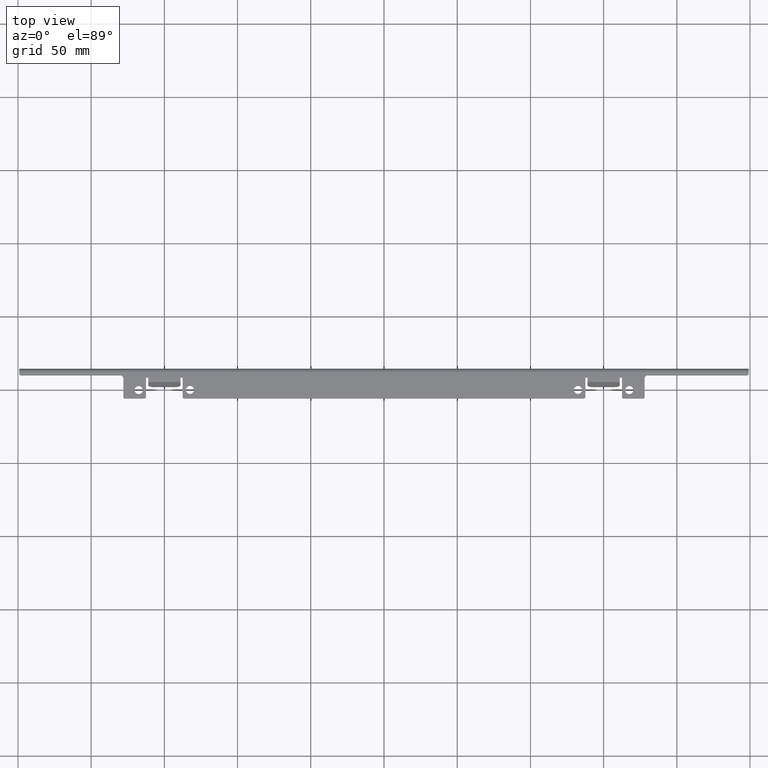
[diagram: clean part render]
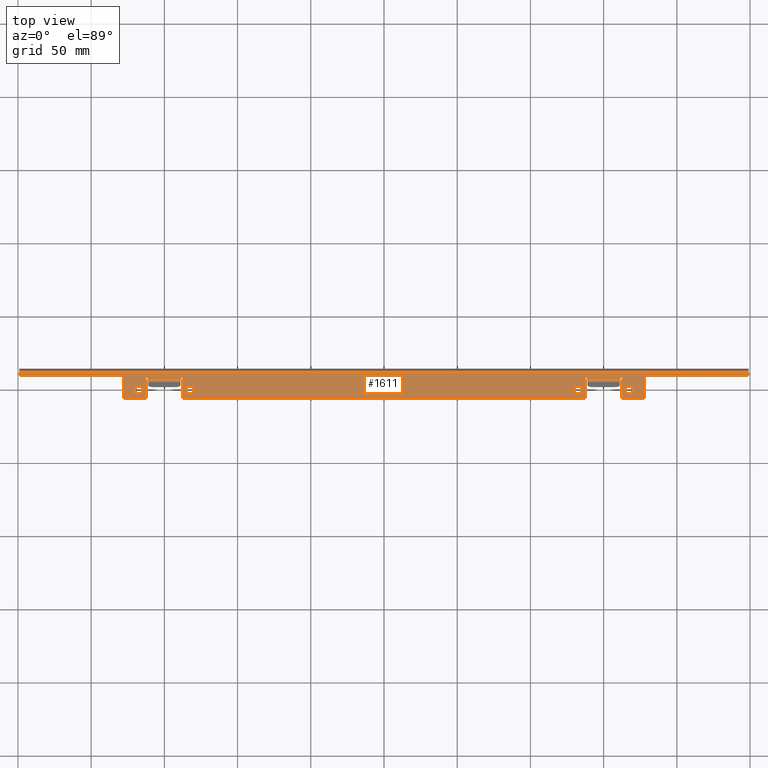
[diagram: same view with one face highlighted and labeled with its STEP entity id]
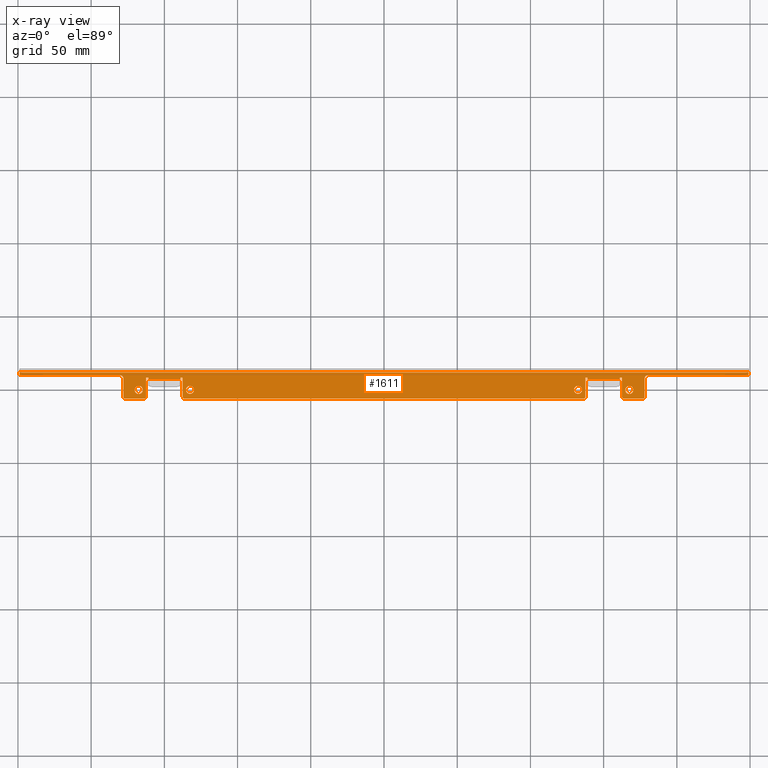
[diagram: x-ray of the same camera — body ghosted, the highlighted face saturated]
A machine part, top view. The second image highlights one B-rep face of the part: STEP entity #1611.
The next image is the same camera in x-ray: the body ghosted, the highlighted face saturated — about 0% of this face is hidden behind the body in this view.
In plain terms, the highlighted planar face has unit normal (0, -0, 1).
Its self-contained STEP definition (entity closure, byte-faithful):
#4 = CIRCLE ( 'NONE', #580, 1.000000000000000900 ) ;
#7 = EDGE_CURVE ( 'NONE', #274, #2395, #1231, .T. ) ;
#10 = AXIS2_PLACEMENT_3D ( 'NONE', #1668, #1493, #933 ) ;
#15 = ORIENTED_EDGE ( 'NONE', *, *, #1948, .T. ) ;
#17 = DIRECTION ( 'NONE',  ( 1.000000000000000000, 0.0000000000000000000, 0.0000000000000000000 ) ) ;
#24 = CARTESIAN_POINT ( 'NONE',  ( -248.0999999999999900, 10.47195934717846700, 0.0000000000000000000 ) ) ;
#27 = VERTEX_POINT ( 'NONE', #1690 ) ;
#31 = CARTESIAN_POINT ( 'NONE',  ( 162.5000000000000000, 7.871959347178525400, 0.0000000000000000000 ) ) ;
#35 = EDGE_CURVE ( 'NONE', #806, #1566, #2409, .T. ) ;
#37 = VERTEX_POINT ( 'NONE', #1828 ) ;
#67 = DIRECTION ( 'NONE',  ( -1.000000000000000000, 0.0000000000000000000, 0.0000000000000000000 ) ) ;
#94 = VERTEX_POINT ( 'NONE', #2396 ) ;
#97 = CIRCLE ( 'NONE', #1510, 2.750000000000002700 ) ;
#115 = DIRECTION ( 'NONE',  ( 0.0000000000000000000, -0.0000000000000000000, 1.000000000000000000 ) ) ;
#116 = DIRECTION ( 'NONE',  ( 1.000000000000000000, 0.0000000000000000000, 0.0000000000000000000 ) ) ;
#117 = DIRECTION ( 'NONE',  ( 0.0000000000000000000, 1.000000000000000000, 0.0000000000000000000 ) ) ;
#142 = AXIS2_PLACEMENT_3D ( 'NONE', #317, #115, #2018 ) ;
#143 = CARTESIAN_POINT ( 'NONE',  ( -139.0000000000000000, 6.871959347178530700, 0.0000000000000000000 ) ) ;
#144 = AXIS2_PLACEMENT_3D ( 'NONE', #1224, #1606, #655 ) ;
#154 = VERTEX_POINT ( 'NONE', #1137 ) ;
#160 = VERTEX_POINT ( 'NONE', #969 ) ;
#172 = AXIS2_PLACEMENT_3D ( 'NONE', #942, #402, #1128 ) ;
#189 = EDGE_CURVE ( 'NONE', #1925, #27, #1356, .T. ) ;
#192 = LINE ( 'NONE', #1889, #1420 ) ;
#195 = DIRECTION ( 'NONE',  ( 0.0000000000000000000, -0.0000000000000000000, 1.000000000000000000 ) ) ;
#196 = CARTESIAN_POINT ( 'NONE',  ( 249.0999999999999900, 10.47195934717846700, 0.0000000000000000000 ) ) ;
#206 = ORIENTED_EDGE ( 'NONE', *, *, #2109, .T. ) ;
#210 = VECTOR ( 'NONE', #2091, 1000.000000000000000 ) ;
#222 = CARTESIAN_POINT ( 'NONE',  ( 0.0000000000000000000, 0.0000000000000000000, 0.0000000000000000000 ) ) ;
#230 = ORIENTED_EDGE ( 'NONE', *, *, #964, .T. ) ;
#238 = VERTEX_POINT ( 'NONE', #797 ) ;
#246 = LINE ( 'NONE', #1681, #2246 ) ;
#248 = CARTESIAN_POINT ( 'NONE',  ( 167.4999999999999700, -0.5280406528214622900, 0.0000000000000000000 ) ) ;
#249 = ORIENTED_EDGE ( 'NONE', *, *, #1106, .T. ) ;
#257 = DIRECTION ( 'NONE',  ( -0.0000000000000000000, 1.000000000000000000, -0.0000000000000000000 ) ) ;
#260 = DIRECTION ( 'NONE',  ( -0.0000000000000000000, -1.000000000000000000, -0.0000000000000000000 ) ) ;
#274 = VERTEX_POINT ( 'NONE', #2260 ) ;
#287 = AXIS2_PLACEMENT_3D ( 'NONE', #1507, #585, #1873 ) ;
#296 = ORIENTED_EDGE ( 'NONE', *, *, #526, .T. ) ;
#299 = LINE ( 'NONE', #2283, #210 ) ;
#300 = DIRECTION ( 'NONE',  ( 0.0000000000000000000, -0.0000000000000000000, 1.000000000000000000 ) ) ;
#317 = CARTESIAN_POINT ( 'NONE',  ( 177.0000000000000000, -5.328040652821452600, 0.0000000000000000000 ) ) ;
#323 = CARTESIAN_POINT ( 'NONE',  ( -160.9999999999999700, 6.871959347178530700, 0.0000000000000000000 ) ) ;
#335 = LINE ( 'NONE', #1009, #1181 ) ;
#338 = CIRCLE ( 'NONE', #144, 2.750000000000002700 ) ;
#350 = EDGE_CURVE ( 'NONE', #1618, #779, #192, .T. ) ;
#356 = VECTOR ( 'NONE', #1967, 1000.000000000000000 ) ;
#366 = CARTESIAN_POINT ( 'NONE',  ( 162.5000000000000000, 7.871959347178525400, 0.0000000000000000000 ) ) ;
#374 = VERTEX_POINT ( 'NONE', #1520 ) ;
#378 = PLANE ( 'NONE',  #676 ) ;
#382 = CARTESIAN_POINT ( 'NONE',  ( -162.5000000000000000, 7.871959347178525400, 0.0000000000000000000 ) ) ;
#386 = EDGE_CURVE ( 'NONE', #2365, #2218, #458, .T. ) ;
#388 = VERTEX_POINT ( 'NONE', #963 ) ;
#389 = VECTOR ( 'NONE', #597, 1000.000000000000000 ) ;
#391 = VECTOR ( 'NONE', #751, 1000.000000000000000 ) ;
#393 = EDGE_CURVE ( 'NONE', #1133, #2183, #631, .T. ) ;
#396 = LINE ( 'NONE', #649, #2334 ) ;
#400 = LINE ( 'NONE', #1087, #766 ) ;
#402 = DIRECTION ( 'NONE',  ( 0.0000000000000000000, 0.0000000000000000000, 1.000000000000000000 ) ) ;
#407 = VECTOR ( 'NONE', #1346, 1000.000000000000000 ) ;
#410 = DIRECTION ( 'NONE',  ( -1.000000000000000000, 0.0000000000000000000, 0.0000000000000000000 ) ) ;
#417 = LINE ( 'NONE', #1659, #2244 ) ;
#443 = CARTESIAN_POINT ( 'NONE',  ( 178.0000000000000000, 9.471959347178456700, 0.0000000000000000000 ) ) ;
#458 = LINE ( 'NONE', #366, #2389 ) ;
#471 = CARTESIAN_POINT ( 'NONE',  ( -170.2499999999999700, -0.5280406528214619500, 0.0000000000000000000 ) ) ;
#485 = DIRECTION ( 'NONE',  ( 1.000000000000000000, -5.595882180570350100E-016, -0.0000000000000000000 ) ) ;
#490 = EDGE_CURVE ( 'NONE', #1173, #37, #335, .T. ) ;
#496 = EDGE_CURVE ( 'NONE', #1226, #1982, #2062, .T. ) ;
#500 = CARTESIAN_POINT ( 'NONE',  ( -180.0000000000000000, 7.471959347178456700, 0.0000000000000000000 ) ) ;
#506 = DIRECTION ( 'NONE',  ( -0.0000000000000000000, 0.0000000000000000000, -1.000000000000000000 ) ) ;
#507 = VERTEX_POINT ( 'NONE', #808 ) ;
#513 = EDGE_LOOP ( 'NONE', ( #2146, #531 ) ) ;
#516 = VERTEX_POINT ( 'NONE', #1546 ) ;
#517 = CIRCLE ( 'NONE', #1301, 2.750000000000002700 ) ;
#526 = EDGE_CURVE ( 'NONE', #928, #94, #667, .T. ) ;
#530 = DIRECTION ( 'NONE',  ( 1.000000000000000000, -2.523234146875356000E-017, 0.0000000000000000000 ) ) ;
#531 = ORIENTED_EDGE ( 'NONE', *, *, #496, .F. ) ;
#537 = DIRECTION ( 'NONE',  ( 0.0000000000000000000, 0.0000000000000000000, 1.000000000000000000 ) ) ;
#541 = ORIENTED_EDGE ( 'NONE', *, *, #943, .T. ) ;
#550 = FACE_BOUND ( 'NONE', #788, .T. ) ;
#553 = CARTESIAN_POINT ( 'NONE',  ( 137.4999999999999700, -6.328040652821460600, 0.0000000000000000000 ) ) ;
#560 = AXIS2_PLACEMENT_3D ( 'NONE', #1728, #195, #2063 ) ;
#573 = VERTEX_POINT ( 'NONE', #1001 ) ;
#580 = AXIS2_PLACEMENT_3D ( 'NONE', #1783, #300, #867 ) ;
#585 = DIRECTION ( 'NONE',  ( -0.0000000000000000000, 0.0000000000000000000, -1.000000000000000000 ) ) ;
#586 = CARTESIAN_POINT ( 'NONE',  ( 160.9999999999999700, 6.871959347178530700, 0.0000000000000000000 ) ) ;
#591 = AXIS2_PLACEMENT_3D ( 'NONE', #500, #506, #116 ) ;
#596 = DIRECTION ( 'NONE',  ( 1.000000000000000000, 0.0000000000000000000, -0.0000000000000000000 ) ) ;
#597 = DIRECTION ( 'NONE',  ( 1.110223024625163200E-013, 1.000000000000000000, 0.0000000000000000000 ) ) ;
#600 = ORIENTED_EDGE ( 'NONE', *, *, #490, .T. ) ;
#608 = ORIENTED_EDGE ( 'NONE', *, *, #1568, .T. ) ;
#621 = DIRECTION ( 'NONE',  ( 1.000000000000000000, 0.0000000000000000000, 0.0000000000000000000 ) ) ;
#630 = VERTEX_POINT ( 'NONE', #860 ) ;
#631 = LINE ( 'NONE', #1501, #391 ) ;
#635 = ORIENTED_EDGE ( 'NONE', *, *, #350, .T. ) ;
#649 = CARTESIAN_POINT ( 'NONE',  ( 249.0999999999999900, 11.57195934717847100, 0.0000000000000000000 ) ) ;
#650 = EDGE_CURVE ( 'NONE', #1566, #806, #517, .T. ) ;
#653 = EDGE_CURVE ( 'NONE', #2404, #1925, #2274, .T. ) ;
#655 = DIRECTION ( 'NONE',  ( 1.000000000000000000, 0.0000000000000000000, 0.0000000000000000000 ) ) ;
#659 = ORIENTED_EDGE ( 'NONE', *, *, #905, .T. ) ;
#664 = DIRECTION ( 'NONE',  ( 1.000000000000000000, 5.595882180570350100E-016, 0.0000000000000000000 ) ) ;
#667 = LINE ( 'NONE', #1336, #1381 ) ;
#672 = DIRECTION ( 'NONE',  ( 0.0000000000000000000, 0.0000000000000000000, 1.000000000000000000 ) ) ;
#676 = AXIS2_PLACEMENT_3D ( 'NONE', #222, #957, #596 ) ;
#679 = CARTESIAN_POINT ( 'NONE',  ( 248.0999999999999900, 9.471959347178469100, 0.0000000000000000000 ) ) ;
#682 = CARTESIAN_POINT ( 'NONE',  ( -162.5000000000000000, -6.328040652821460600, 0.0000000000000000000 ) ) ;
#687 = CARTESIAN_POINT ( 'NONE',  ( -161.0000000000000900, 7.871959347178525400, 0.0000000000000000000 ) ) ;
#716 = CARTESIAN_POINT ( 'NONE',  ( 139.0000000000000000, 6.871959347178530700, 0.0000000000000000000 ) ) ;
#721 = ORIENTED_EDGE ( 'NONE', *, *, #650, .F. ) ;
#722 = ORIENTED_EDGE ( 'NONE', *, *, #2348, .T. ) ;
#728 = EDGE_CURVE ( 'NONE', #374, #1547, #417, .T. ) ;
#751 = DIRECTION ( 'NONE',  ( 1.000000000000000000, -1.707885278739472600E-016, -0.0000000000000000000 ) ) ;
#756 = ORIENTED_EDGE ( 'NONE', *, *, #842, .T. ) ;
#758 = CARTESIAN_POINT ( 'NONE',  ( 137.4999999999999700, -5.328040652821460600, 0.0000000000000000000 ) ) ;
#766 = VECTOR ( 'NONE', #1256, 1000.000000000000000 ) ;
#779 = VERTEX_POINT ( 'NONE', #687 ) ;
#788 = EDGE_LOOP ( 'NONE', ( #1847, #1504 ) ) ;
#797 = CARTESIAN_POINT ( 'NONE',  ( 162.5000000000000000, -5.328040652821459700, 0.0000000000000000000 ) ) ;
#806 = VERTEX_POINT ( 'NONE', #1245 ) ;
#808 = CARTESIAN_POINT ( 'NONE',  ( 139.0000000000000000, 6.871959347178529900, 3.903127820947816000E-015 ) ) ;
#810 = CIRCLE ( 'NONE', #591, 2.000000000000001800 ) ;
#842 = EDGE_CURVE ( 'NONE', #1519, #388, #1827, .T. ) ;
#856 = CARTESIAN_POINT ( 'NONE',  ( -137.4999999999999700, 7.871959347178525400, 0.0000000000000000000 ) ) ;
#860 = CARTESIAN_POINT ( 'NONE',  ( -177.0000000000000000, -6.328040652821452600, 0.0000000000000000000 ) ) ;
#864 = CARTESIAN_POINT ( 'NONE',  ( 161.0000000000000900, 7.871959347178525400, 0.0000000000000000000 ) ) ;
#866 = EDGE_CURVE ( 'NONE', #94, #630, #1069, .T. ) ;
#867 = DIRECTION ( 'NONE',  ( 1.000000000000000000, 0.0000000000000000000, 0.0000000000000000000 ) ) ;
#884 = DIRECTION ( 'NONE',  ( -1.000000000000000000, -0.0000000000000000000, -0.0000000000000000000 ) ) ;
#885 = CARTESIAN_POINT ( 'NONE',  ( 137.4999999999999700, 7.871959347178525400, 0.0000000000000000000 ) ) ;
#893 = CARTESIAN_POINT ( 'NONE',  ( 129.7499999999999700, -0.4280406528214617000, 0.0000000000000000000 ) ) ;
#901 = VECTOR ( 'NONE', #117, 1000.000000000000000 ) ;
#905 = EDGE_CURVE ( 'NONE', #37, #2404, #1767, .T. ) ;
#908 = FACE_BOUND ( 'NONE', #513, .T. ) ;
#913 = CARTESIAN_POINT ( 'NONE',  ( -132.4999999999999700, -0.4280406528214620300, 0.0000000000000000000 ) ) ;
#915 = EDGE_CURVE ( 'NONE', #1982, #1226, #2299, .T. ) ;
#919 = DIRECTION ( 'NONE',  ( 0.0000000000000000000, 0.0000000000000000000, 1.000000000000000000 ) ) ;
#925 = LINE ( 'NONE', #885, #2148 ) ;
#928 = VERTEX_POINT ( 'NONE', #1893 ) ;
#930 = CIRCLE ( 'NONE', #2345, 1.000000000000000900 ) ;
#931 = VERTEX_POINT ( 'NONE', #1684 ) ;
#933 = DIRECTION ( 'NONE',  ( 1.000000000000000000, 0.0000000000000000000, 0.0000000000000000000 ) ) ;
#938 = ORIENTED_EDGE ( 'NONE', *, *, #653, .T. ) ;
#942 = CARTESIAN_POINT ( 'NONE',  ( -167.4999999999999700, -0.5280406528214622900, 0.0000000000000000000 ) ) ;
#943 = EDGE_CURVE ( 'NONE', #975, #2365, #1377, .T. ) ;
#957 = DIRECTION ( 'NONE',  ( 0.0000000000000000000, -0.0000000000000000000, 1.000000000000000000 ) ) ;
#958 = EDGE_LOOP ( 'NONE', ( #1043, #230, #1997, #2227, #296, #1975, #2028, #1410, #249, #635, #1745, #1557, #600, #659, #938, #1160, #2160, #2173, #756, #1008, #206, #1064, #541, #1315, #608, #1340, #1631, #2368, #722, #1720, #2410, #15, #2151, #1062 ) ) ;
#963 = CARTESIAN_POINT ( 'NONE',  ( 137.4999999999999700, 7.871959347178525400, 0.0000000000000000000 ) ) ;
#964 = EDGE_CURVE ( 'NONE', #2187, #1133, #1263, .T. ) ;
#969 = CARTESIAN_POINT ( 'NONE',  ( 178.0000000000000000, 7.471959347178456700, 0.0000000000000000000 ) ) ;
#970 = VECTOR ( 'NONE', #1619, 1000.000000000000000 ) ;
#975 = VERTEX_POINT ( 'NONE', #586 ) ;
#980 = CARTESIAN_POINT ( 'NONE',  ( -249.0999999999999900, 11.57195934717847100, 0.0000000000000000000 ) ) ;
#984 = VECTOR ( 'NONE', #530, 1000.000000000000000 ) ;
#987 = LINE ( 'NONE', #2165, #1415 ) ;
#995 = EDGE_CURVE ( 'NONE', #1547, #2187, #1743, .T. ) ;
#998 = DIRECTION ( 'NONE',  ( 0.0000000000000000000, -0.0000000000000000000, 1.000000000000000000 ) ) ;
#1001 = CARTESIAN_POINT ( 'NONE',  ( 180.0000000000000000, 9.471959347178456700, 0.0000000000000000000 ) ) ;
#1008 = ORIENTED_EDGE ( 'NONE', *, *, #1151, .T. ) ;
#1009 = CARTESIAN_POINT ( 'NONE',  ( -139.0000000000000000, 6.871959347178530700, 0.0000000000000000000 ) ) ;
#1015 = VECTOR ( 'NONE', #1692, 1000.000000000000000 ) ;
#1039 = AXIS2_PLACEMENT_3D ( 'NONE', #913, #537, #2415 ) ;
#1042 = CARTESIAN_POINT ( 'NONE',  ( 164.7499999999999700, -0.5280406528214619500, 0.0000000000000000000 ) ) ;
#1043 = ORIENTED_EDGE ( 'NONE', *, *, #995, .T. ) ;
#1062 = ORIENTED_EDGE ( 'NONE', *, *, #728, .T. ) ;
#1064 = ORIENTED_EDGE ( 'NONE', *, *, #2255, .T. ) ;
#1069 = CIRCLE ( 'NONE', #1729, 1.000000000000000900 ) ;
#1076 = DIRECTION ( 'NONE',  ( 1.000000000000000000, 0.0000000000000000000, 0.0000000000000000000 ) ) ;
#1087 = CARTESIAN_POINT ( 'NONE',  ( -139.0000000000000000, 6.871959347178530700, 0.0000000000000000000 ) ) ;
#1088 = DIRECTION ( 'NONE',  ( -0.0000000000000000000, -1.000000000000000000, -0.0000000000000000000 ) ) ;
#1106 = EDGE_CURVE ( 'NONE', #2032, #1618, #299, .T. ) ;
#1107 = EDGE_CURVE ( 'NONE', #1985, #516, #97, .T. ) ;
#1108 = DIRECTION ( 'NONE',  ( 1.000000000000000000, 0.0000000000000000000, 0.0000000000000000000 ) ) ;
#1128 = DIRECTION ( 'NONE',  ( -1.000000000000000000, 0.0000000000000000000, 0.0000000000000000000 ) ) ;
#1133 = VERTEX_POINT ( 'NONE', #2195 ) ;
#1134 = CARTESIAN_POINT ( 'NONE',  ( -160.9999999999999700, 6.871959347178529900, 3.903127820947816000E-015 ) ) ;
#1136 = LINE ( 'NONE', #2119, #407 ) ;
#1137 = CARTESIAN_POINT ( 'NONE',  ( -163.5000000000000000, -6.328040652821459700, 0.0000000000000000000 ) ) ;
#1151 = EDGE_CURVE ( 'NONE', #388, #1755, #925, .T. ) ;
#1160 = ORIENTED_EDGE ( 'NONE', *, *, #189, .T. ) ;
#1173 = VERTEX_POINT ( 'NONE', #143 ) ;
#1174 = DIRECTION ( 'NONE',  ( 0.0000000000000000000, -0.0000000000000000000, 1.000000000000000000 ) ) ;
#1179 = CARTESIAN_POINT ( 'NONE',  ( -167.4999999999999700, -0.5280406528214622900, 0.0000000000000000000 ) ) ;
#1181 = VECTOR ( 'NONE', #1331, 1000.000000000000000 ) ;
#1224 = CARTESIAN_POINT ( 'NONE',  ( 167.4999999999999700, -0.5280406528214622900, 0.0000000000000000000 ) ) ;
#1226 = VERTEX_POINT ( 'NONE', #471 ) ;
#1231 = CIRCLE ( 'NONE', #142, 1.000000000000000900 ) ;
#1232 = VERTEX_POINT ( 'NONE', #679 ) ;
#1245 = CARTESIAN_POINT ( 'NONE',  ( -135.2499999999999700, -0.4280406528214617000, 0.0000000000000000000 ) ) ;
#1253 = AXIS2_PLACEMENT_3D ( 'NONE', #24, #1174, #2108 ) ;
#1255 = LINE ( 'NONE', #1577, #970 ) ;
#1256 = DIRECTION ( 'NONE',  ( 1.000000000000000000, -0.0000000000000000000, -0.0000000000000000000 ) ) ;
#1263 = CIRCLE ( 'NONE', #1253, 1.000000000000000900 ) ;
#1266 = CARTESIAN_POINT ( 'NONE',  ( -129.7499999999999700, -0.4280406528214620300, 0.0000000000000000000 ) ) ;
#1275 = CARTESIAN_POINT ( 'NONE',  ( -249.0999999999999900, 11.57195934717847100, 0.0000000000000000000 ) ) ;
#1294 = CIRCLE ( 'NONE', #1789, 2.750000000000002700 ) ;
#1299 = CARTESIAN_POINT ( 'NONE',  ( 132.4999999999999700, -0.4280406528214620300, 0.0000000000000000000 ) ) ;
#1301 = AXIS2_PLACEMENT_3D ( 'NONE', #1591, #672, #67 ) ;
#1307 = EDGE_CURVE ( 'NONE', #573, #1232, #1344, .T. ) ;
#1315 = ORIENTED_EDGE ( 'NONE', *, *, #386, .T. ) ;
#1331 = DIRECTION ( 'NONE',  ( 1.110223024625163200E-013, 1.000000000000000000, 0.0000000000000000000 ) ) ;
#1336 = CARTESIAN_POINT ( 'NONE',  ( -178.0000000000000000, 9.471959347178456700, 0.0000000000000000000 ) ) ;
#1337 = DIRECTION ( 'NONE',  ( 1.110223024625163200E-013, -1.000000000000000000, -0.0000000000000000000 ) ) ;
#1340 = ORIENTED_EDGE ( 'NONE', *, *, #1530, .T. ) ;
#1344 = LINE ( 'NONE', #443, #356 ) ;
#1346 = DIRECTION ( 'NONE',  ( 1.000000000000000000, 0.0000000000000000000, 0.0000000000000000000 ) ) ;
#1351 = FACE_OUTER_BOUND ( 'NONE', #958, .T. ) ;
#1356 = CIRCLE ( 'NONE', #560, 1.000000000000000900 ) ;
#1358 = CARTESIAN_POINT ( 'NONE',  ( 170.2499999999999700, -0.5280406528214622900, 0.0000000000000000000 ) ) ;
#1364 = CARTESIAN_POINT ( 'NONE',  ( 138.9999999999999100, 7.871959347178525400, 0.0000000000000000000 ) ) ;
#1374 = EDGE_LOOP ( 'NONE', ( #721, #2001 ) ) ;
#1377 = LINE ( 'NONE', #2440, #389 ) ;
#1381 = VECTOR ( 'NONE', #1933, 1000.000000000000000 ) ;
#1386 = DIRECTION ( 'NONE',  ( 1.000000000000000000, 0.0000000000000000000, 0.0000000000000000000 ) ) ;
#1397 = EDGE_CURVE ( 'NONE', #2183, #928, #810, .T. ) ;
#1410 = ORIENTED_EDGE ( 'NONE', *, *, #1706, .T. ) ;
#1415 = VECTOR ( 'NONE', #664, 1000.000000000000000 ) ;
#1420 = VECTOR ( 'NONE', #1876, 1000.000000000000000 ) ;
#1421 = CARTESIAN_POINT ( 'NONE',  ( -164.7499999999999700, -0.5280406528214622900, 0.0000000000000000000 ) ) ;
#1428 = DIRECTION ( 'NONE',  ( 1.110223024625163200E-013, -1.000000000000000000, -0.0000000000000000000 ) ) ;
#1432 = CARTESIAN_POINT ( 'NONE',  ( 0.0000000000000000000, -6.328040652821457000, 0.0000000000000000000 ) ) ;
#1452 = CARTESIAN_POINT ( 'NONE',  ( -162.5000000000000000, -5.328040652821459700, 0.0000000000000000000 ) ) ;
#1489 = DIRECTION ( 'NONE',  ( 1.000000000000000000, 0.0000000000000000000, 0.0000000000000000000 ) ) ;
#1493 = DIRECTION ( 'NONE',  ( 0.0000000000000000000, -0.0000000000000000000, 1.000000000000000000 ) ) ;
#1501 = CARTESIAN_POINT ( 'NONE',  ( -178.0000000000000000, 9.471959347178456700, 0.0000000000000000000 ) ) ;
#1504 = ORIENTED_EDGE ( 'NONE', *, *, #1821, .F. ) ;
#1505 = EDGE_CURVE ( 'NONE', #516, #1985, #1294, .T. ) ;
#1507 = CARTESIAN_POINT ( 'NONE',  ( 180.0000000000000000, 7.471959347178456700, 0.0000000000000000000 ) ) ;
#1510 = AXIS2_PLACEMENT_3D ( 'NONE', #1834, #1810, #1076 ) ;
#1516 = LINE ( 'NONE', #323, #1637 ) ;
#1519 = VERTEX_POINT ( 'NONE', #758 ) ;
#1520 = CARTESIAN_POINT ( 'NONE',  ( 249.0999999999999900, 11.57195934717847200, 6.071532165918824800E-015 ) ) ;
#1530 = EDGE_CURVE ( 'NONE', #238, #931, #930, .T. ) ;
#1543 = CARTESIAN_POINT ( 'NONE',  ( -163.5000000000000000, -5.328040652821459700, 0.0000000000000000000 ) ) ;
#1546 = CARTESIAN_POINT ( 'NONE',  ( 135.2499999999999700, -0.4280406528214620300, 0.0000000000000000000 ) ) ;
#1547 = VERTEX_POINT ( 'NONE', #1275 ) ;
#1557 = ORIENTED_EDGE ( 'NONE', *, *, #2096, .T. ) ;
#1566 = VERTEX_POINT ( 'NONE', #1266 ) ;
#1568 = EDGE_CURVE ( 'NONE', #2218, #238, #246, .T. ) ;
#1577 = CARTESIAN_POINT ( 'NONE',  ( 178.0000000000000000, 9.471959347178456700, 0.0000000000000000000 ) ) ;
#1587 = VERTEX_POINT ( 'NONE', #196 ) ;
#1591 = CARTESIAN_POINT ( 'NONE',  ( -132.4999999999999700, -0.4280406528214620300, 0.0000000000000000000 ) ) ;
#1606 = DIRECTION ( 'NONE',  ( 0.0000000000000000000, 0.0000000000000000000, 1.000000000000000000 ) ) ;
#1611 = ADVANCED_FACE ( 'NONE', ( #908, #2277, #1772, #550, #1351 ), #378, .T. ) ;
#1612 = EDGE_CURVE ( 'NONE', #160, #573, #2158, .T. ) ;
#1618 = VERTEX_POINT ( 'NONE', #382 ) ;
#1619 = DIRECTION ( 'NONE',  ( -0.0000000000000000000, 1.000000000000000000, -0.0000000000000000000 ) ) ;
#1631 = ORIENTED_EDGE ( 'NONE', *, *, #1913, .T. ) ;
#1637 = VECTOR ( 'NONE', #1428, 1000.000000000000000 ) ;
#1647 = DIRECTION ( 'NONE',  ( 0.0000000000000000000, -0.0000000000000000000, 1.000000000000000000 ) ) ;
#1659 = CARTESIAN_POINT ( 'NONE',  ( -249.0999999999999900, 11.57195934717847100, 0.0000000000000000000 ) ) ;
#1668 = CARTESIAN_POINT ( 'NONE',  ( 136.4999999999999700, -5.328040652821460600, 0.0000000000000000000 ) ) ;
#1676 = VERTEX_POINT ( 'NONE', #1134 ) ;
#1681 = CARTESIAN_POINT ( 'NONE',  ( 162.5000000000000000, -6.328040652821460600, 0.0000000000000000000 ) ) ;
#1684 = CARTESIAN_POINT ( 'NONE',  ( 163.5000000000000000, -6.328040652821459700, 0.0000000000000000000 ) ) ;
#1687 = DIRECTION ( 'NONE',  ( 1.000000000000000000, -0.0000000000000000000, -0.0000000000000000000 ) ) ;
#1690 = CARTESIAN_POINT ( 'NONE',  ( -136.4999999999999700, -6.328040652821453400, 0.0000000000000000000 ) ) ;
#1692 = DIRECTION ( 'NONE',  ( 1.000000000000000000, -0.0000000000000000000, -0.0000000000000000000 ) ) ;
#1706 = EDGE_CURVE ( 'NONE', #154, #2032, #1802, .T. ) ;
#1719 = DIRECTION ( 'NONE',  ( 0.0000000000000000000, -0.0000000000000000000, 1.000000000000000000 ) ) ;
#1720 = ORIENTED_EDGE ( 'NONE', *, *, #1612, .T. ) ;
#1728 = CARTESIAN_POINT ( 'NONE',  ( -136.4999999999999700, -5.328040652821453400, 0.0000000000000000000 ) ) ;
#1729 = AXIS2_PLACEMENT_3D ( 'NONE', #2263, #1719, #17 ) ;
#1730 = DIRECTION ( 'NONE',  ( 0.0000000000000000000, -1.000000000000000000, 0.0000000000000000000 ) ) ;
#1743 = LINE ( 'NONE', #980, #2208 ) ;
#1745 = ORIENTED_EDGE ( 'NONE', *, *, #2011, .T. ) ;
#1747 = EDGE_CURVE ( 'NONE', #1587, #374, #396, .T. ) ;
#1751 = AXIS2_PLACEMENT_3D ( 'NONE', #1543, #998, #621 ) ;
#1754 = VECTOR ( 'NONE', #1337, 1000.000000000000000 ) ;
#1755 = VERTEX_POINT ( 'NONE', #1364 ) ;
#1767 = LINE ( 'NONE', #2257, #1015 ) ;
#1772 = FACE_BOUND ( 'NONE', #1374, .T. ) ;
#1777 = CARTESIAN_POINT ( 'NONE',  ( -137.4999999999999700, -5.328040652821453400, 0.0000000000000000000 ) ) ;
#1783 = CARTESIAN_POINT ( 'NONE',  ( 248.0999999999999900, 10.47195934717846700, 0.0000000000000000000 ) ) ;
#1789 = AXIS2_PLACEMENT_3D ( 'NONE', #1299, #919, #1489 ) ;
#1802 = CIRCLE ( 'NONE', #1751, 1.000000000000000900 ) ;
#1810 = DIRECTION ( 'NONE',  ( 0.0000000000000000000, 0.0000000000000000000, 1.000000000000000000 ) ) ;
#1821 = EDGE_CURVE ( 'NONE', #2378, #2298, #2386, .T. ) ;
#1827 = LINE ( 'NONE', #553, #901 ) ;
#1828 = CARTESIAN_POINT ( 'NONE',  ( -138.9999999999999100, 7.871959347178525400, 0.0000000000000000000 ) ) ;
#1834 = CARTESIAN_POINT ( 'NONE',  ( 132.4999999999999700, -0.4280406528214620300, 0.0000000000000000000 ) ) ;
#1847 = ORIENTED_EDGE ( 'NONE', *, *, #1907, .F. ) ;
#1873 = DIRECTION ( 'NONE',  ( 1.000000000000000000, 0.0000000000000000000, 0.0000000000000000000 ) ) ;
#1876 = DIRECTION ( 'NONE',  ( 1.000000000000000000, 0.0000000000000000000, 0.0000000000000000000 ) ) ;
#1881 = ORIENTED_EDGE ( 'NONE', *, *, #1505, .F. ) ;
#1889 = CARTESIAN_POINT ( 'NONE',  ( -162.5000000000000000, 7.871959347178525400, 0.0000000000000000000 ) ) ;
#1893 = CARTESIAN_POINT ( 'NONE',  ( -178.0000000000000000, 7.471959347178456700, 0.0000000000000000000 ) ) ;
#1907 = EDGE_CURVE ( 'NONE', #2298, #2378, #338, .T. ) ;
#1913 = EDGE_CURVE ( 'NONE', #931, #274, #987, .T. ) ;
#1925 = VERTEX_POINT ( 'NONE', #1777 ) ;
#1933 = DIRECTION ( 'NONE',  ( 0.0000000000000000000, -1.000000000000000000, 0.0000000000000000000 ) ) ;
#1948 = EDGE_CURVE ( 'NONE', #1232, #1587, #4, .T. ) ;
#1967 = DIRECTION ( 'NONE',  ( 1.000000000000000000, 1.707885278739472600E-016, 0.0000000000000000000 ) ) ;
#1969 = CARTESIAN_POINT ( 'NONE',  ( -137.4999999999999700, -6.328040652821460600, 0.0000000000000000000 ) ) ;
#1975 = ORIENTED_EDGE ( 'NONE', *, *, #866, .T. ) ;
#1982 = VERTEX_POINT ( 'NONE', #1421 ) ;
#1985 = VERTEX_POINT ( 'NONE', #893 ) ;
#1988 = CARTESIAN_POINT ( 'NONE',  ( 136.4999999999999700, -6.328040652821460600, 0.0000000000000000000 ) ) ;
#1997 = ORIENTED_EDGE ( 'NONE', *, *, #393, .T. ) ;
#2001 = ORIENTED_EDGE ( 'NONE', *, *, #35, .F. ) ;
#2004 = EDGE_CURVE ( 'NONE', #27, #2420, #2120, .T. ) ;
#2011 = EDGE_CURVE ( 'NONE', #779, #1676, #1516, .T. ) ;
#2018 = DIRECTION ( 'NONE',  ( 1.000000000000000000, 0.0000000000000000000, 0.0000000000000000000 ) ) ;
#2028 = ORIENTED_EDGE ( 'NONE', *, *, #2428, .T. ) ;
#2032 = VERTEX_POINT ( 'NONE', #1452 ) ;
#2042 = CARTESIAN_POINT ( 'NONE',  ( -249.0999999999999900, 10.47195934717846700, 0.0000000000000000000 ) ) ;
#2062 = CIRCLE ( 'NONE', #2311, 2.750000000000002700 ) ;
#2063 = DIRECTION ( 'NONE',  ( 1.000000000000000000, 0.0000000000000000000, 0.0000000000000000000 ) ) ;
#2076 = LINE ( 'NONE', #682, #2229 ) ;
#2091 = DIRECTION ( 'NONE',  ( 0.0000000000000000000, 1.000000000000000000, 0.0000000000000000000 ) ) ;
#2096 = EDGE_CURVE ( 'NONE', #1676, #1173, #400, .T. ) ;
#2097 = DIRECTION ( 'NONE',  ( 0.0000000000000000000, 0.0000000000000000000, 1.000000000000000000 ) ) ;
#2099 = DIRECTION ( 'NONE',  ( 0.0000000000000000000, 0.0000000000000000000, 1.000000000000000000 ) ) ;
#2108 = DIRECTION ( 'NONE',  ( 1.000000000000000000, 0.0000000000000000000, 0.0000000000000000000 ) ) ;
#2109 = EDGE_CURVE ( 'NONE', #1755, #507, #2259, .T. ) ;
#2119 = CARTESIAN_POINT ( 'NONE',  ( 139.0000000000000000, 6.871959347178530700, 0.0000000000000000000 ) ) ;
#2120 = LINE ( 'NONE', #1432, #984 ) ;
#2142 = CIRCLE ( 'NONE', #10, 1.000000000000000900 ) ;
#2145 = CARTESIAN_POINT ( 'NONE',  ( 178.0000000000000000, -5.328040652821452600, 0.0000000000000000000 ) ) ;
#2146 = ORIENTED_EDGE ( 'NONE', *, *, #915, .F. ) ;
#2148 = VECTOR ( 'NONE', #2189, 1000.000000000000000 ) ;
#2151 = ORIENTED_EDGE ( 'NONE', *, *, #1747, .T. ) ;
#2158 = CIRCLE ( 'NONE', #287, 2.000000000000001800 ) ;
#2160 = ORIENTED_EDGE ( 'NONE', *, *, #2004, .T. ) ;
#2165 = CARTESIAN_POINT ( 'NONE',  ( 162.5000000000000000, -6.328040652821460600, 0.0000000000000000000 ) ) ;
#2173 = ORIENTED_EDGE ( 'NONE', *, *, #2196, .T. ) ;
#2183 = VERTEX_POINT ( 'NONE', #2221 ) ;
#2187 = VERTEX_POINT ( 'NONE', #2042 ) ;
#2189 = DIRECTION ( 'NONE',  ( 1.000000000000000000, 0.0000000000000000000, 0.0000000000000000000 ) ) ;
#2195 = CARTESIAN_POINT ( 'NONE',  ( -248.0999999999999900, 9.471959347178469100, 0.0000000000000000000 ) ) ;
#2196 = EDGE_CURVE ( 'NONE', #2420, #1519, #2142, .T. ) ;
#2208 = VECTOR ( 'NONE', #1730, 1000.000000000000000 ) ;
#2218 = VERTEX_POINT ( 'NONE', #31 ) ;
#2221 = CARTESIAN_POINT ( 'NONE',  ( -180.0000000000000000, 9.471959347178456700, 0.0000000000000000000 ) ) ;
#2227 = ORIENTED_EDGE ( 'NONE', *, *, #1397, .T. ) ;
#2229 = VECTOR ( 'NONE', #485, 1000.000000000000000 ) ;
#2243 = CARTESIAN_POINT ( 'NONE',  ( 163.5000000000000000, -5.328040652821459700, 0.0000000000000000000 ) ) ;
#2244 = VECTOR ( 'NONE', #884, 1000.000000000000000 ) ;
#2246 = VECTOR ( 'NONE', #1088, 1000.000000000000000 ) ;
#2255 = EDGE_CURVE ( 'NONE', #507, #975, #1136, .T. ) ;
#2257 = CARTESIAN_POINT ( 'NONE',  ( -137.4999999999999700, 7.871959347178525400, 0.0000000000000000000 ) ) ;
#2259 = LINE ( 'NONE', #716, #1754 ) ;
#2260 = CARTESIAN_POINT ( 'NONE',  ( 177.0000000000000000, -6.328040652821452600, 0.0000000000000000000 ) ) ;
#2263 = CARTESIAN_POINT ( 'NONE',  ( -177.0000000000000000, -5.328040652821452600, 0.0000000000000000000 ) ) ;
#2272 = ORIENTED_EDGE ( 'NONE', *, *, #1107, .F. ) ;
#2274 = LINE ( 'NONE', #1969, #2442 ) ;
#2277 = FACE_BOUND ( 'NONE', #2435, .T. ) ;
#2283 = CARTESIAN_POINT ( 'NONE',  ( -162.5000000000000000, -6.328040652821460600, 0.0000000000000000000 ) ) ;
#2298 = VERTEX_POINT ( 'NONE', #1358 ) ;
#2299 = CIRCLE ( 'NONE', #172, 2.750000000000002700 ) ;
#2311 = AXIS2_PLACEMENT_3D ( 'NONE', #1179, #2099, #410 ) ;
#2334 = VECTOR ( 'NONE', #257, 1000.000000000000000 ) ;
#2345 = AXIS2_PLACEMENT_3D ( 'NONE', #2243, #1647, #1108 ) ;
#2348 = EDGE_CURVE ( 'NONE', #2395, #160, #1255, .T. ) ;
#2365 = VERTEX_POINT ( 'NONE', #864 ) ;
#2368 = ORIENTED_EDGE ( 'NONE', *, *, #7, .T. ) ;
#2378 = VERTEX_POINT ( 'NONE', #1042 ) ;
#2386 = CIRCLE ( 'NONE', #2400, 2.750000000000002700 ) ;
#2389 = VECTOR ( 'NONE', #1687, 1000.000000000000000 ) ;
#2395 = VERTEX_POINT ( 'NONE', #2145 ) ;
#2396 = CARTESIAN_POINT ( 'NONE',  ( -178.0000000000000000, -5.328040652821452600, 0.0000000000000000000 ) ) ;
#2400 = AXIS2_PLACEMENT_3D ( 'NONE', #248, #2097, #1386 ) ;
#2404 = VERTEX_POINT ( 'NONE', #856 ) ;
#2409 = CIRCLE ( 'NONE', #1039, 2.750000000000002700 ) ;
#2410 = ORIENTED_EDGE ( 'NONE', *, *, #1307, .T. ) ;
#2415 = DIRECTION ( 'NONE',  ( -1.000000000000000000, 0.0000000000000000000, 0.0000000000000000000 ) ) ;
#2420 = VERTEX_POINT ( 'NONE', #1988 ) ;
#2428 = EDGE_CURVE ( 'NONE', #630, #154, #2076, .T. ) ;
#2435 = EDGE_LOOP ( 'NONE', ( #1881, #2272 ) ) ;
#2440 = CARTESIAN_POINT ( 'NONE',  ( 160.9999999999999700, 6.871959347178530700, 0.0000000000000000000 ) ) ;
#2442 = VECTOR ( 'NONE', #260, 1000.000000000000000 ) ;